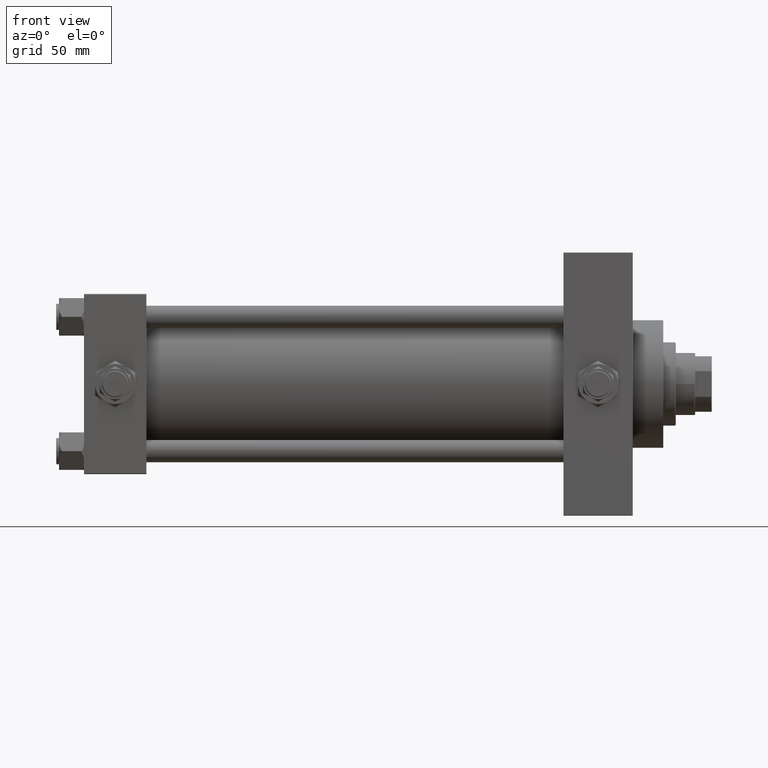
[diagram: clean part render]
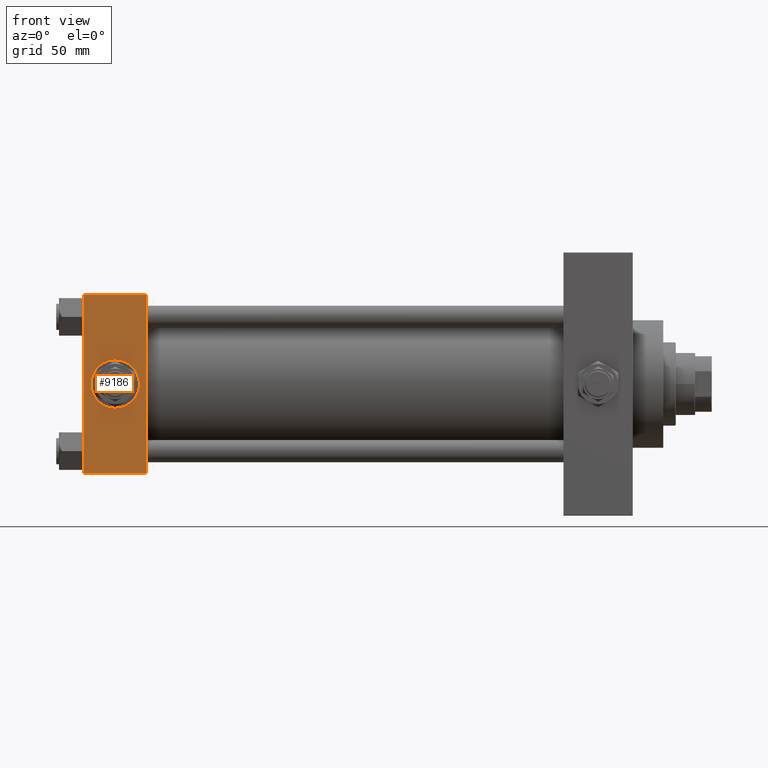
[diagram: same view with one face highlighted and labeled with its STEP entity id]
A machine part, front view. The second image highlights one B-rep face of the part: STEP entity #9186.
In plain terms, the highlighted planar face has unit normal (0, 1, 0).
Its self-contained STEP definition (entity closure, byte-faithful):
#390 = EDGE_CURVE ( 'NONE', #38526, #29688, #19071, .T. ) ;
#1018 = VECTOR ( 'NONE', #47358, 1000.000000000000000 ) ;
#2163 = CARTESIAN_POINT ( 'NONE',  ( 45.00000000000000000, -65.00000000000000000, -64.49999999999991473 ) ) ;
#2660 = LINE ( 'NONE', #5447, #18502 ) ;
#3431 = CARTESIAN_POINT ( 'NONE',  ( 22.50000000000000000, -65.00000000000000000, -17.50000000000000000 ) ) ;
#4854 = DIRECTION ( 'NONE',  ( 0.000000000000000000, 0.000000000000000000, -1.000000000000000000 ) ) ;
#5447 = CARTESIAN_POINT ( 'NONE',  ( 45.00000000000000000, -65.00000000000000000, -64.49999999999991473 ) ) ;
#6428 = VERTEX_POINT ( 'NONE', #11388 ) ;
#8044 = VECTOR ( 'NONE', #25276, 1000.000000000000000 ) ;
#8928 = ORIENTED_EDGE ( 'NONE', *, *, #18708, .F. ) ;
#9186 = ADVANCED_FACE ( 'NONE', ( #35345, #27790 ), #12203, .F. ) ;
#11388 = CARTESIAN_POINT ( 'NONE',  ( 45.00000000000000000, -65.00000000000000000, 64.50000000000000000 ) ) ;
#11707 = CARTESIAN_POINT ( 'NONE',  ( 22.50000000000000355, -65.00000000000000000, 17.50000000000000000 ) ) ;
#12203 = PLANE ( 'NONE',  #32256 ) ;
#15351 = VERTEX_POINT ( 'NONE', #2163 ) ;
#16982 = EDGE_CURVE ( 'NONE', #6428, #41712, #32784, .T. ) ;
#17387 = ORIENTED_EDGE ( 'NONE', *, *, #38913, .T. ) ;
#18502 = VECTOR ( 'NONE', #29353, 1000.000000000000000 ) ;
#18708 = EDGE_CURVE ( 'NONE', #29688, #38526, #20999, .T. ) ;
#19071 = CIRCLE ( 'NONE', #47179, 17.50000000000000000 ) ;
#20999 = CIRCLE ( 'NONE', #26629, 17.50000000000000000 ) ;
#21255 = CARTESIAN_POINT ( 'NONE',  ( 45.00000000000000000, -65.00000000000000000, 65.00000000000000000 ) ) ;
#22356 = EDGE_LOOP ( 'NONE', ( #17387, #47468, #34678, #42619 ) ) ;
#23527 = DIRECTION ( 'NONE',  ( 0.000000000000000000, -0.000000000000000000, 1.000000000000000000 ) ) ;
#23993 = CARTESIAN_POINT ( 'NONE',  ( 22.50000000000000000, -65.00000000000000000, 0.000000000000000000 ) ) ;
#24500 = CARTESIAN_POINT ( 'NONE',  ( 0.000000000000000000, -65.00000000000000000, 64.50000000000000000 ) ) ;
#24513 = CARTESIAN_POINT ( 'NONE',  ( 45.00000000000000000, -65.00000000000000000, 65.00000000000000000 ) ) ;
#25002 = LINE ( 'NONE', #40346, #32686 ) ;
#25276 = DIRECTION ( 'NONE',  ( 0.000000000000000000, 0.000000000000000000, -1.000000000000000000 ) ) ;
#25629 = DIRECTION ( 'NONE',  ( 0.000000000000000000, -1.000000000000000000, -8.673617379884036705E-17 ) ) ;
#26629 = AXIS2_PLACEMENT_3D ( 'NONE', #23993, #35578, #4854 ) ;
#27790 = FACE_OUTER_BOUND ( 'NONE', #22356, .T. ) ;
#28753 = CARTESIAN_POINT ( 'NONE',  ( 45.00000000000000000, -65.00000000000000000, 64.50000000000000000 ) ) ;
#29353 = DIRECTION ( 'NONE',  ( 1.000000000000000000, 0.000000000000000000, 0.000000000000000000 ) ) ;
#29510 = DIRECTION ( 'NONE',  ( 0.000000000000000000, 0.000000000000000000, -1.000000000000000000 ) ) ;
#29688 = VERTEX_POINT ( 'NONE', #11707 ) ;
#31490 = ORIENTED_EDGE ( 'NONE', *, *, #390, .F. ) ;
#32256 = AXIS2_PLACEMENT_3D ( 'NONE', #24513, #43145, #23527 ) ;
#32578 = LINE ( 'NONE', #21255, #8044 ) ;
#32686 = VECTOR ( 'NONE', #29510, 1000.000000000000000 ) ;
#32784 = LINE ( 'NONE', #28753, #1018 ) ;
#34678 = ORIENTED_EDGE ( 'NONE', *, *, #43483, .F. ) ;
#35345 = FACE_BOUND ( 'NONE', #42465, .T. ) ;
#35578 = DIRECTION ( 'NONE',  ( 0.000000000000000000, -1.000000000000000000, -8.673617379884036705E-17 ) ) ;
#38526 = VERTEX_POINT ( 'NONE', #3431 ) ;
#38913 = EDGE_CURVE ( 'NONE', #41712, #43568, #25002, .T. ) ;
#40346 = CARTESIAN_POINT ( 'NONE',  ( 0.000000000000000000, -65.00000000000000000, 65.00000000000000000 ) ) ;
#41221 = CARTESIAN_POINT ( 'NONE',  ( 22.50000000000000000, -65.00000000000000000, 0.000000000000000000 ) ) ;
#41712 = VERTEX_POINT ( 'NONE', #24500 ) ;
#42465 = EDGE_LOOP ( 'NONE', ( #31490, #8928 ) ) ;
#42619 = ORIENTED_EDGE ( 'NONE', *, *, #16982, .T. ) ;
#43129 = EDGE_CURVE ( 'NONE', #43568, #15351, #2660, .T. ) ;
#43145 = DIRECTION ( 'NONE',  ( -0.000000000000000000, 1.000000000000000000, 0.000000000000000000 ) ) ;
#43483 = EDGE_CURVE ( 'NONE', #6428, #15351, #32578, .T. ) ;
#43568 = VERTEX_POINT ( 'NONE', #45138 ) ;
#43826 = DIRECTION ( 'NONE',  ( 0.000000000000000000, 0.000000000000000000, -1.000000000000000000 ) ) ;
#45138 = CARTESIAN_POINT ( 'NONE',  ( 0.000000000000000000, -65.00000000000000000, -64.49999999999991473 ) ) ;
#47179 = AXIS2_PLACEMENT_3D ( 'NONE', #41221, #25629, #43826 ) ;
#47358 = DIRECTION ( 'NONE',  ( -1.000000000000000000, 0.000000000000000000, 0.000000000000000000 ) ) ;
#47468 = ORIENTED_EDGE ( 'NONE', *, *, #43129, .T. ) ;